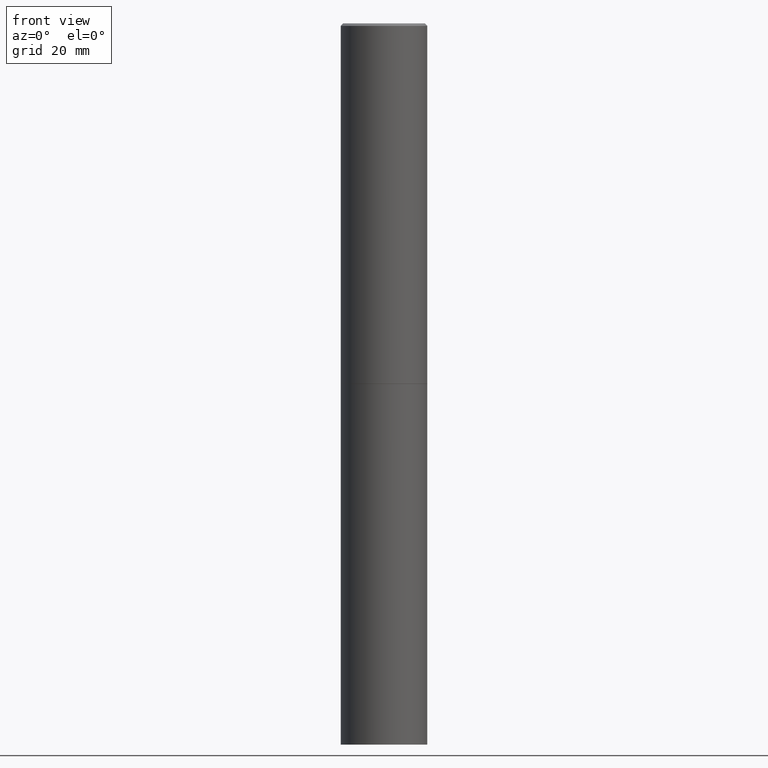
[diagram: clean part render]
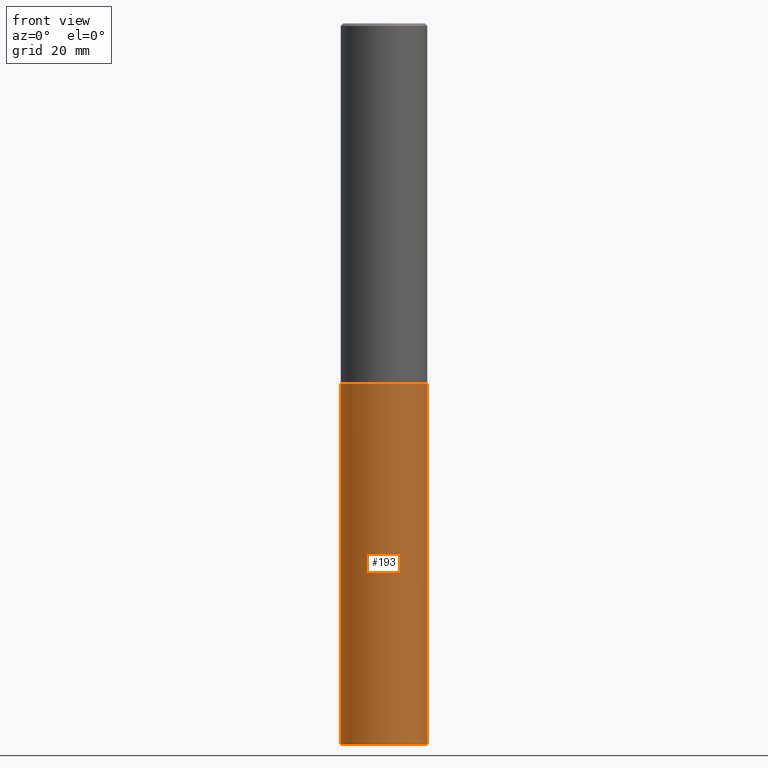
[diagram: same view with one face highlighted and labeled with its STEP entity id]
A machine part, front view. The second image highlights one B-rep face of the part: STEP entity #193.
In plain terms, the highlighted cylindrical surface (partial cylindrical patch) has radius 9.0005 mm, axis along (-0, 0, 1).
Its self-contained STEP definition (entity closure, byte-faithful):
#4 = CARTESIAN_POINT ( 'NONE',  ( 0.3543499999999999983, -2.309335587137632500E-14, -5.905499999999999972 ) ) ;
#7 = ORIENTED_EDGE ( 'NONE', *, *, #172, .F. ) ;
#11 = VERTEX_POINT ( 'NONE', #356 ) ;
#31 = CARTESIAN_POINT ( 'NONE',  ( -0.3543499999999999983, -1.294631181370425968E-14, -5.905499999999999972 ) ) ;
#41 = AXIS2_PLACEMENT_3D ( 'NONE', #205, #65, #354 ) ;
#53 = EDGE_CURVE ( 'NONE', #176, #11, #282, .T. ) ;
#62 = DIRECTION ( 'NONE',  ( -2.445468806185136597E-29, 3.491481338843145583E-15, 1.000000000000000000 ) ) ;
#65 = DIRECTION ( 'NONE',  ( -2.445468806185136597E-29, 3.491481338843145583E-15, 1.000000000000000000 ) ) ;
#67 = LINE ( 'NONE', #141, #323 ) ;
#72 = ORIENTED_EDGE ( 'NONE', *, *, #53, .T. ) ;
#89 = CARTESIAN_POINT ( 'NONE',  ( 7.220735744022852519E-29, -1.030929694920215502E-14, -2.952700000000000102 ) ) ;
#93 = FACE_OUTER_BOUND ( 'NONE', #185, .T. ) ;
#99 = CARTESIAN_POINT ( 'NONE',  ( 1.444171603492632270E-28, -2.061894304653819197E-14, -5.905499999999999972 ) ) ;
#137 = DIRECTION ( 'NONE',  ( -2.445468806185136877E-29, 3.491481338843145188E-15, 1.000000000000000000 ) ) ;
#141 = CARTESIAN_POINT ( 'NONE',  ( -0.3543499999999999983, 2.517808184165914997E-15, -1.743024649231826066E-29 ) ) ;
#149 = DIRECTION ( 'NONE',  ( -2.445468806185136597E-29, 3.491481338843145583E-15, 1.000000000000000000 ) ) ;
#152 = AXIS2_PLACEMENT_3D ( 'NONE', #89, #149, #318 ) ;
#172 = EDGE_CURVE ( 'NONE', #178, #247, #67, .T. ) ;
#176 = VERTEX_POINT ( 'NONE', #4 ) ;
#178 = VERTEX_POINT ( 'NONE', #31 ) ;
#179 = EDGE_CURVE ( 'NONE', #247, #11, #315, .T. ) ;
#185 = EDGE_LOOP ( 'NONE', ( #7, #231, #72, #290 ) ) ;
#189 = AXIS2_PLACEMENT_3D ( 'NONE', #99, #62, #234 ) ;
#193 = ADVANCED_FACE ( 'NONE', ( #93 ), #292, .T. ) ;
#196 = EDGE_CURVE ( 'NONE', #178, #176, #250, .T. ) ;
#203 = DIRECTION ( 'NONE',  ( -2.445468806185136877E-29, 3.491481338843145188E-15, 1.000000000000000000 ) ) ;
#205 = CARTESIAN_POINT ( 'NONE',  ( 0.000000000000000000, 0.000000000000000000, 0.000000000000000000 ) ) ;
#228 = VECTOR ( 'NONE', #137, 39.37007874015748143 ) ;
#231 = ORIENTED_EDGE ( 'NONE', *, *, #196, .T. ) ;
#234 = DIRECTION ( 'NONE',  ( 1.000000000000000000, -6.982962677686271444E-15, 0.000000000000000000 ) ) ;
#247 = VERTEX_POINT ( 'NONE', #267 ) ;
#250 = CIRCLE ( 'NONE', #189, 0.3543499999999999983 ) ;
#267 = CARTESIAN_POINT ( 'NONE',  ( -0.3543499999999999983, -1.294631181370425968E-14, -2.952700000000000102 ) ) ;
#282 = LINE ( 'NONE', #313, #228 ) ;
#290 = ORIENTED_EDGE ( 'NONE', *, *, #179, .F. ) ;
#292 = CYLINDRICAL_SURFACE ( 'NONE', #41, 0.3543499999999999983 ) ;
#313 = CARTESIAN_POINT ( 'NONE',  ( 0.3543499999999999983, -2.474412824838128694E-15, 1.727873240503289749E-29 ) ) ;
#315 = CIRCLE ( 'NONE', #152, 0.3543499999999999983 ) ;
#318 = DIRECTION ( 'NONE',  ( 1.000000000000000000, -6.982962677686265922E-15, 0.000000000000000000 ) ) ;
#323 = VECTOR ( 'NONE', #203, 39.37007874015748143 ) ;
#354 = DIRECTION ( 'NONE',  ( 1.000000000000000000, -6.982962677686266711E-15, 4.876176775795935793E-29 ) ) ;
#356 = CARTESIAN_POINT ( 'NONE',  ( 0.3543499999999999983, -1.278370977404028332E-14, -2.952700000000000102 ) ) ;